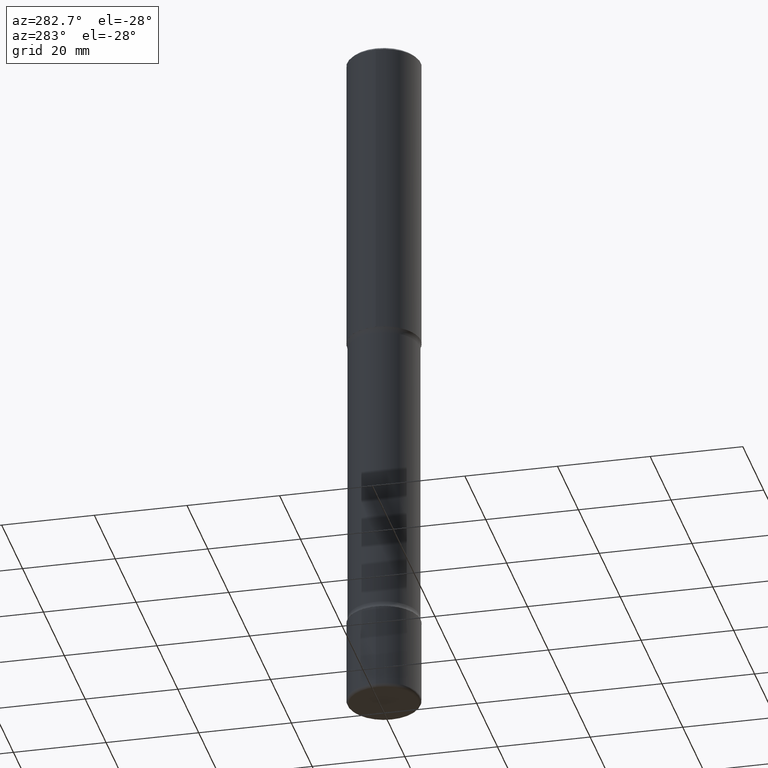
[diagram: clean part render]
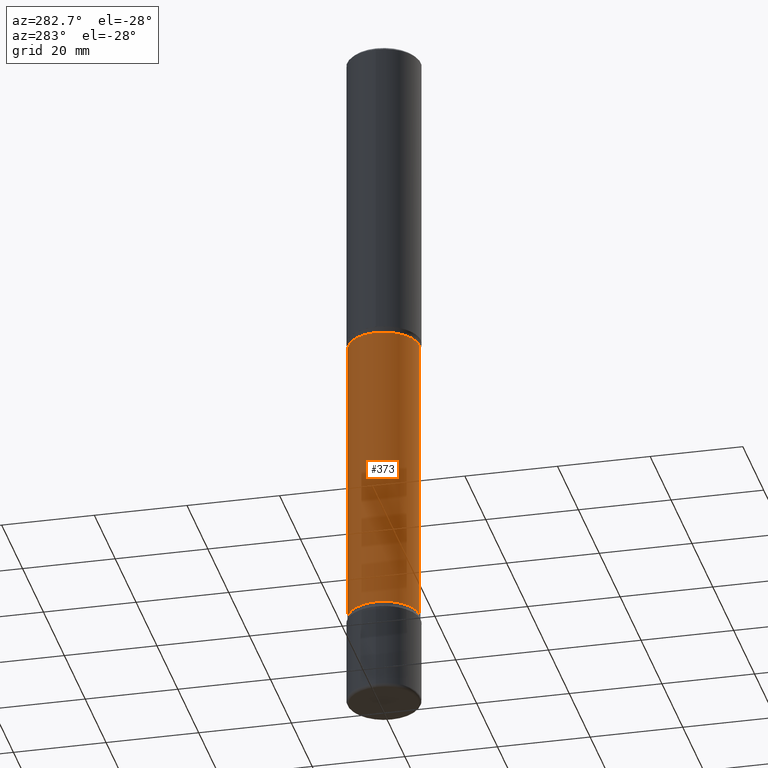
[diagram: same view with one face highlighted and labeled with its STEP entity id]
A machine part, auxiliary view. The second image highlights one B-rep face of the part: STEP entity #373.
In plain terms, the highlighted cylindrical surface (edge-blend (fillet) strip) has radius 7.6835 mm, axis along (0, -0, -1).
Its self-contained STEP definition (entity closure, byte-faithful):
#2 = CARTESIAN_POINT ( 'NONE',  ( -2.075300644325741948E-15, -0.3025000000000210298, -5.999999999999999112 ) ) ;
#29 = VERTEX_POINT ( 'NONE', #32 ) ;
#32 = CARTESIAN_POINT ( 'NONE',  ( 2.112346210000159735E-15, 0.3024999999999904987, -2.673989794855665902 ) ) ;
#53 = ORIENTED_EDGE ( 'NONE', *, *, #508, .T. ) ;
#67 = EDGE_LOOP ( 'NONE', ( #498, #53, #149, #411 ) ) ;
#70 = CARTESIAN_POINT ( 'NONE',  ( -2.109603134314618744E-15, -0.3025000000000181433, -5.201010205144335430 ) ) ;
#106 = EDGE_CURVE ( 'NONE', #280, #326, #130, .T. ) ;
#109 = FACE_OUTER_BOUND ( 'NONE', #67, .T. ) ;
#111 = CARTESIAN_POINT ( 'NONE',  ( 2.112346210000246116E-15, 0.3024999999999796185, -6.000000000000001776 ) ) ;
#120 = VECTOR ( 'NONE', #524, 39.37007874015748143 ) ;
#130 = LINE ( 'NONE', #2, #120 ) ;
#132 = CARTESIAN_POINT ( 'NONE',  ( -2.109603134314693686E-15, -0.3025000000000108158, -2.673989794855663682 ) ) ;
#149 = ORIENTED_EDGE ( 'NONE', *, *, #404, .T. ) ;
#154 = CIRCLE ( 'NONE', #363, 0.3025000000000006573 ) ;
#176 = EDGE_CURVE ( 'NONE', #326, #192, #221, .T. ) ;
#190 = CARTESIAN_POINT ( 'NONE',  ( 1.483973127219342911E-28, -2.070985133361325197E-14, -6.000000000000000888 ) ) ;
#192 = VERTEX_POINT ( 'NONE', #215 ) ;
#215 = CARTESIAN_POINT ( 'NONE',  ( 2.112346210000222450E-15, 0.3024999999999818390, -5.201010205144337206 ) ) ;
#219 = CARTESIAN_POINT ( 'NONE',  ( 1.270800515080793348E-28, -1.817484388621929912E-14, -5.201010205144336318 ) ) ;
#221 = CIRCLE ( 'NONE', #526, 0.3024999999999999911 ) ;
#280 = VERTEX_POINT ( 'NONE', #132 ) ;
#286 = CYLINDRICAL_SURFACE ( 'NONE', #426, 0.3025000000000003242 ) ;
#302 = CARTESIAN_POINT ( 'NONE',  ( 5.965847175110887226E-29, -1.015720010523015908E-14, -2.673989794855665014 ) ) ;
#307 = VECTOR ( 'NONE', #414, 39.37007874015748143 ) ;
#326 = VERTEX_POINT ( 'NONE', #70 ) ;
#333 = DIRECTION ( 'NONE',  ( 2.668026719628616344E-29, -3.172765739582314775E-15, -1.000000000000000000 ) ) ;
#363 = AXIS2_PLACEMENT_3D ( 'NONE', #302, #509, #389 ) ;
#369 = DIRECTION ( 'NONE',  ( 6.982962677686265922E-15, 1.000000000000000000, -3.612360983357699681E-15 ) ) ;
#373 = ADVANCED_FACE ( 'NONE', ( #109 ), #286, .T. ) ;
#384 = DIRECTION ( 'NONE',  ( 6.982962677686265922E-15, 1.000000000000000000, -3.612360983357703625E-15 ) ) ;
#389 = DIRECTION ( 'NONE',  ( 6.982962677686266711E-15, 1.000000000000000000, -3.612360983357695736E-15 ) ) ;
#390 = DIRECTION ( 'NONE',  ( 2.668026719628616344E-29, -3.172765739582314775E-15, -1.000000000000000000 ) ) ;
#404 = EDGE_CURVE ( 'NONE', #29, #192, #499, .T. ) ;
#411 = ORIENTED_EDGE ( 'NONE', *, *, #176, .F. ) ;
#414 = DIRECTION ( 'NONE',  ( 2.668026719628616344E-29, -3.172765739582314775E-15, -1.000000000000000000 ) ) ;
#426 = AXIS2_PLACEMENT_3D ( 'NONE', #190, #333, #369 ) ;
#498 = ORIENTED_EDGE ( 'NONE', *, *, #106, .F. ) ;
#499 = LINE ( 'NONE', #111, #307 ) ;
#508 = EDGE_CURVE ( 'NONE', #280, #29, #154, .T. ) ;
#509 = DIRECTION ( 'NONE',  ( 2.668026719628616344E-29, -3.172765739582314775E-15, -1.000000000000000000 ) ) ;
#524 = DIRECTION ( 'NONE',  ( 2.668026719628616344E-29, -3.172765739582314775E-15, -1.000000000000000000 ) ) ;
#526 = AXIS2_PLACEMENT_3D ( 'NONE', #219, #390, #384 ) ;